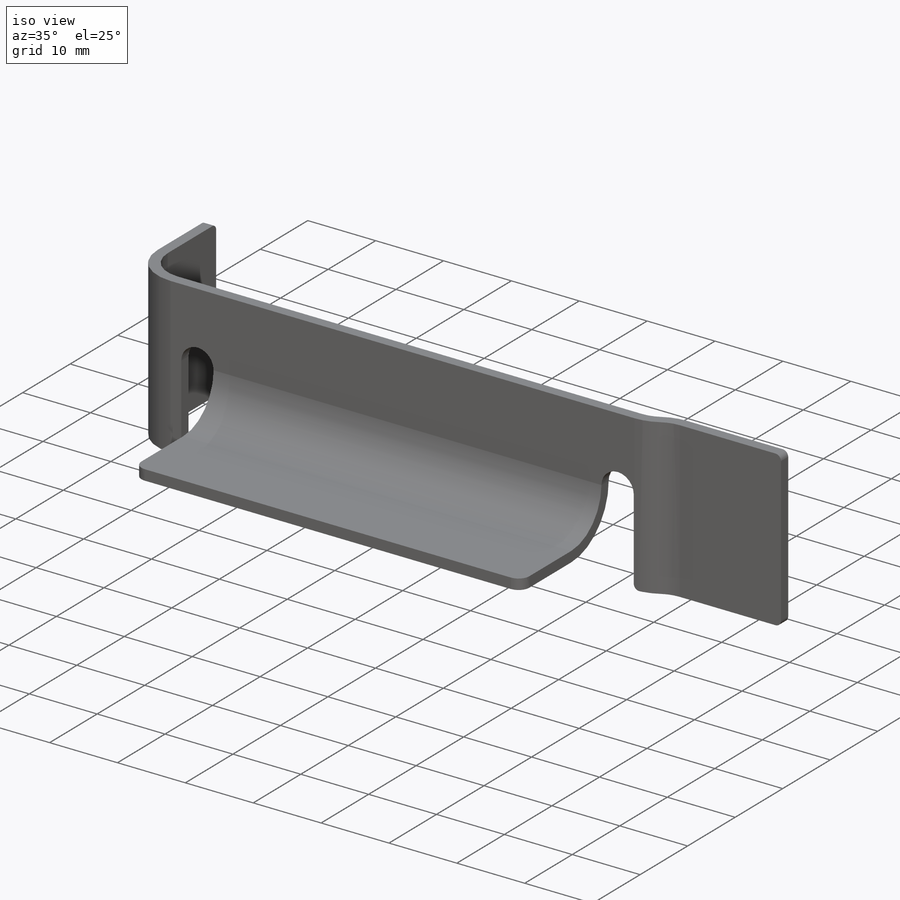
[diagram: iso view]
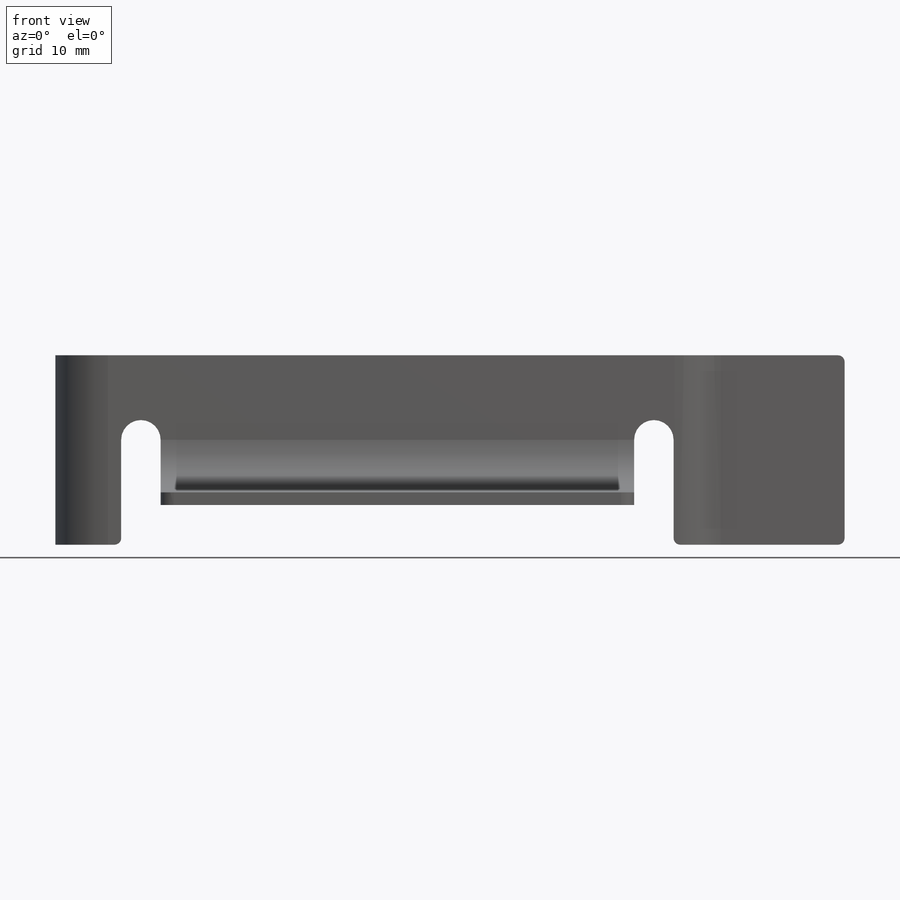
[diagram: front view]
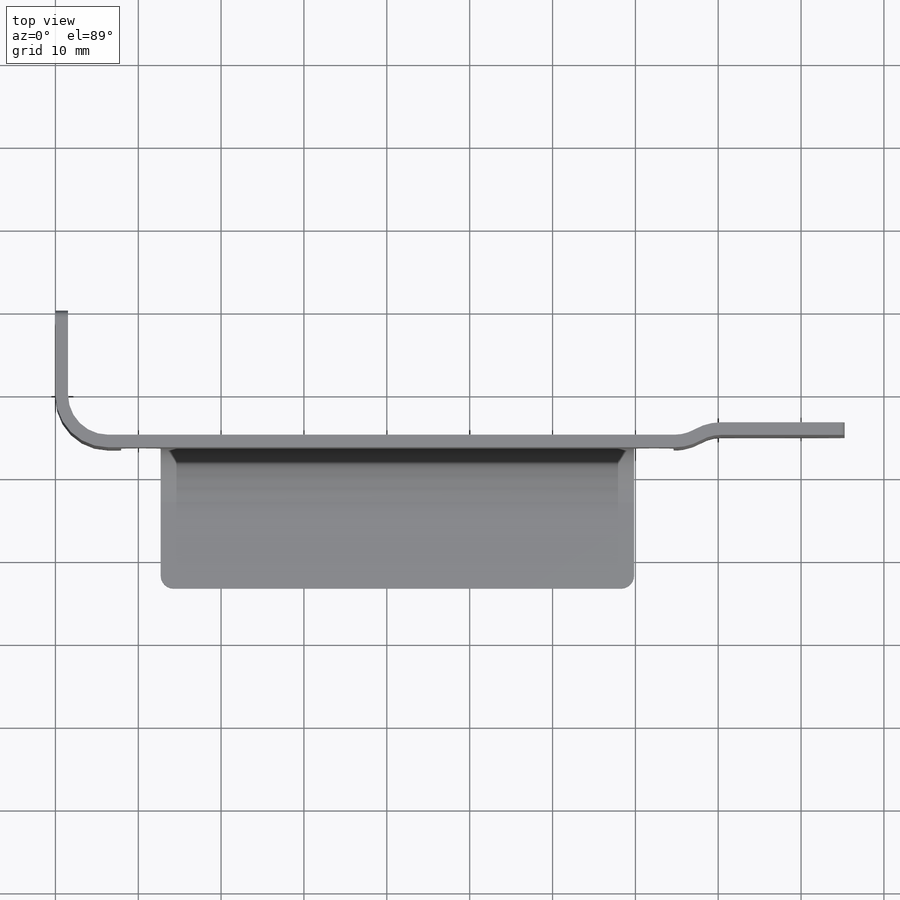
[diagram: top view]
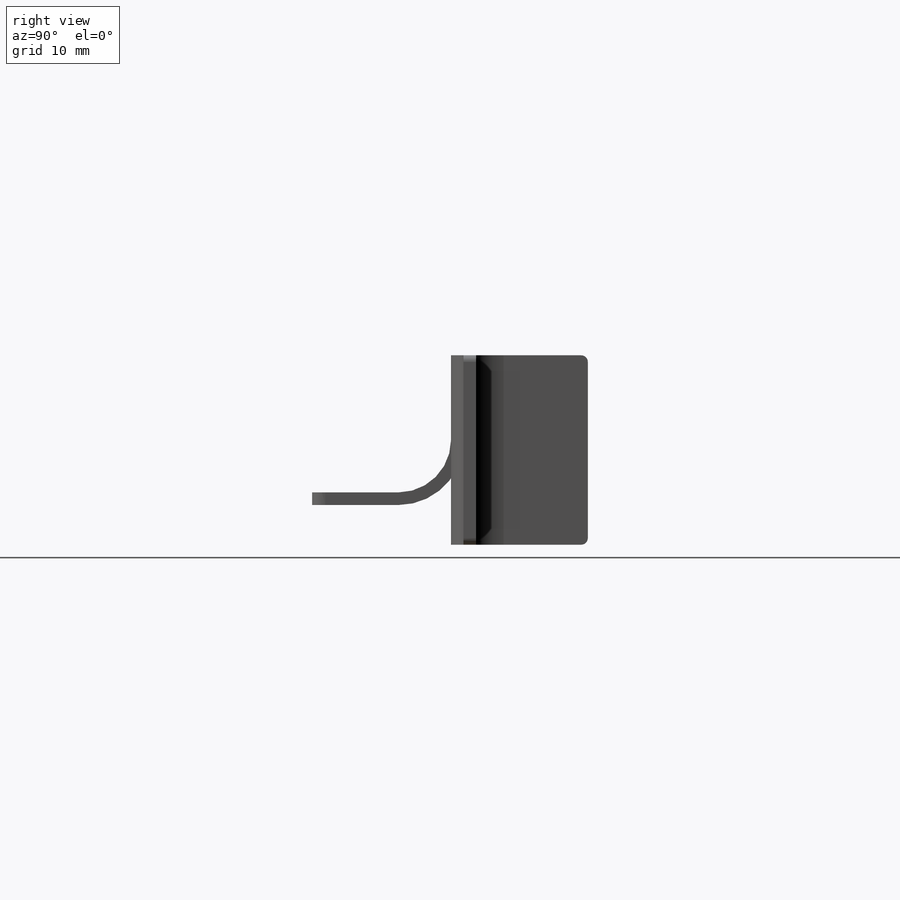
[diagram: right view]
SOLIDWORKS PART (.sldprt)
format: sldprt  version: not decoded by parser v0  size: 387,072 bytes
history: native  units: mm
features: sketch x7, cut_extrude x3, fillet x2, material x1, extrude x1, sheet_metal_op x1 + 4 further entries (+16 scaffold rows collapsed; 1 parser-record rows omitted)
feature tree (36):
  scaffold x16  (default folders/planes/origin — collapsed)
  material  "Material <not specified>"
  sketch  "Sketch1"  dims[D1=95.25mm D2=22.86mm]
  extrude  "Extrude1"  Depth=16.51mm
  sketch  "Sketch7"  dims[D1=57.15mm D2=12.7mm D3=16.5481mm]
  cut_extrude  "Extrude4"  [1 undecoded]
  sheet_metal_op  "Sheet-Metal1"  Thickness=1.524mm
  sketch  "Sketch3"  dims[c1.D1=19.05mm c1.JogBend1=0.0 c2.D1=4.826mm c2.D4=30.0deg c2.D5=2.0 c2.D8=0.762mm c2.D9=0.762mm c2.JogBend2=0.0 c3.D1=4.826mm c3.D4=30.0deg c3.D5=3.0 c3.D8=0.762mm c3.D9=0.762mm c4.D1=4.826mm c4.D2=500.0mm c4.D3=0.0mm c5.D2=1.4351mm c5.D3=30.0deg]
  sketch  "Sketch4"  dims[c1.D1=57.15mm c1.D2=6.4389mm c1.D3=12.7mm c2.D2=16.5481mm]
  cut_extrude  "Extrude5"  [1 undecoded]
  sketch  "Sketch10"  dims[c1.EdgeBend1=0.0 c1.D1=6.35mm c1.D4=90.0deg c1.D5=4.0 c1.D8=0.0mm c1.D9=0.0mm c2.D1=6.35mm c2.D2=500.0mm c2.D3=0.0mm c2.D6=10.0mm c2.D7=16.764mm]
  sketch  "Sketch11"
  cut_extrude  "Extrude6"  [1 undecoded]
  fillet  "Fillet1"  Radius=1.5875mm
  fillet  "Fillet2"  Radius=0.79375mm
  "Flat-Pattern1"
  sketch  "Bend-Lines1"
  "Flatten-<JogBend1>1"
  "Flatten-<JogBend2>1"
  "Flatten-<EdgeBend1>1"
  parser-record x1  (decoder bookkeeping rows leaked as tree rows — omitted from the tree; the rows remain in map.json)
decode coverage: 9 of 14 modeling features carry decoded parameters; 4 rows unclassified (native names shown)
note: 3 parameter values undecoded
summary: no parameter record found for 3 features
note: suppression state not decoded; provenance and decode notes live in map.json
